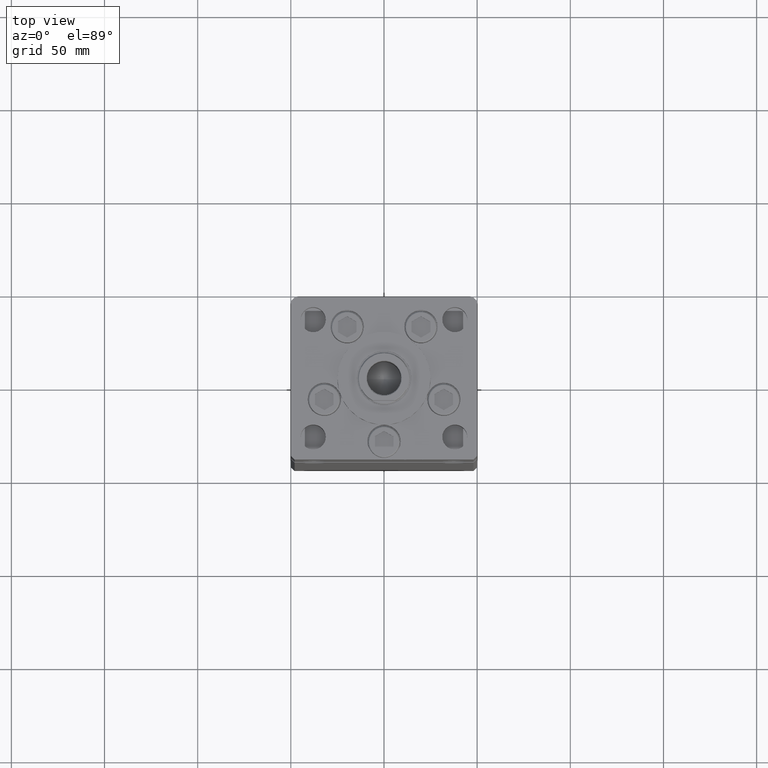
[diagram: clean part render]
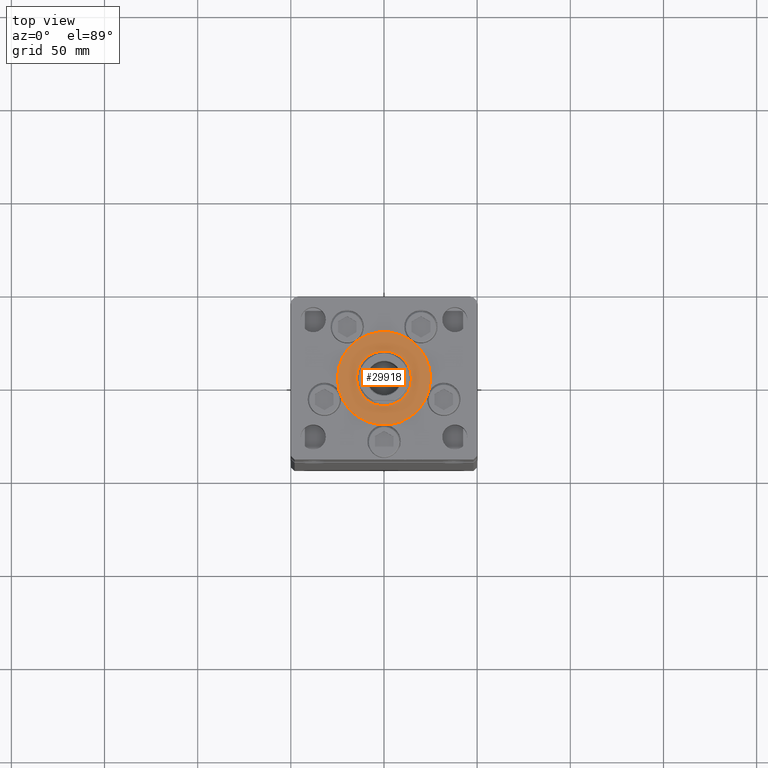
[diagram: same view with one face highlighted and labeled with its STEP entity id]
A machine part, top view. The second image highlights one B-rep face of the part: STEP entity #29918.
In plain terms, the highlighted planar face has unit normal (0, 0, 1).
Its self-contained STEP definition (entity closure, byte-faithful):
#291 = VERTEX_POINT ( 'NONE', #5239 ) ;
#2522 = ORIENTED_EDGE ( 'NONE', *, *, #13127, .T. ) ;
#2698 = DIRECTION ( 'NONE',  ( 0.000000000000000000, 0.000000000000000000, 1.000000000000000000 ) ) ;
#2898 = CARTESIAN_POINT ( 'NONE',  ( 0.000000000000000000, -6.938893903907228378E-15, 2.000000000000000000 ) ) ;
#3922 = DIRECTION ( 'NONE',  ( 0.000000000000000000, 0.000000000000000000, 1.000000000000000000 ) ) ;
#4497 = VERTEX_POINT ( 'NONE', #6522 ) ;
#5239 = CARTESIAN_POINT ( 'NONE',  ( 25.00000000000000000, -3.877276906038844941E-15, 2.000000000000000000 ) ) ;
#5539 = CIRCLE ( 'NONE', #12425, 25.00000000000000000 ) ;
#6522 = CARTESIAN_POINT ( 'NONE',  ( -25.00000000000000000, -6.938893903907228378E-15, 2.000000000000000000 ) ) ;
#6751 = CARTESIAN_POINT ( 'NONE',  ( 0.000000000000000000, -6.938893903907228378E-15, 2.000000000000000000 ) ) ;
#7463 = PLANE ( 'NONE',  #36541 ) ;
#9160 = CIRCLE ( 'NONE', #46107, 14.75000000000000178 ) ;
#10231 = DIRECTION ( 'NONE',  ( 0.000000000000000000, 0.000000000000000000, 1.000000000000000000 ) ) ;
#10527 = DIRECTION ( 'NONE',  ( 1.000000000000000000, 0.000000000000000000, 0.000000000000000000 ) ) ;
#11995 = CARTESIAN_POINT ( 'NONE',  ( 0.000000000000000000, -6.938893903907228378E-15, 2.000000000000000000 ) ) ;
#12037 = FACE_OUTER_BOUND ( 'NONE', #25524, .T. ) ;
#12212 = ORIENTED_EDGE ( 'NONE', *, *, #29510, .F. ) ;
#12425 = AXIS2_PLACEMENT_3D ( 'NONE', #46581, #2698, #38530 ) ;
#13127 = EDGE_CURVE ( 'NONE', #4497, #291, #24110, .T. ) ;
#15824 = FACE_BOUND ( 'NONE', #33833, .T. ) ;
#18845 = CARTESIAN_POINT ( 'NONE',  ( 0.000000000000000000, -6.938893903907228378E-15, 2.000000000000000000 ) ) ;
#19109 = CARTESIAN_POINT ( 'NONE',  ( 14.75000000000000178, -6.938893903907228378E-15, 2.000000000000000000 ) ) ;
#19333 = DIRECTION ( 'NONE',  ( 0.000000000000000000, 0.000000000000000000, 1.000000000000000000 ) ) ;
#20348 = DIRECTION ( 'NONE',  ( 1.000000000000000000, 0.000000000000000000, 0.000000000000000000 ) ) ;
#24110 = CIRCLE ( 'NONE', #25857, 25.00000000000000000 ) ;
#24703 = ORIENTED_EDGE ( 'NONE', *, *, #28642, .T. ) ;
#25524 = EDGE_LOOP ( 'NONE', ( #2522, #24703 ) ) ;
#25857 = AXIS2_PLACEMENT_3D ( 'NONE', #18845, #10231, #50859 ) ;
#26938 = VERTEX_POINT ( 'NONE', #30464 ) ;
#28642 = EDGE_CURVE ( 'NONE', #291, #4497, #5539, .T. ) ;
#29510 = EDGE_CURVE ( 'NONE', #26938, #32966, #33947, .T. ) ;
#29918 = ADVANCED_FACE ( 'NONE', ( #15824, #12037 ), #7463, .T. ) ;
#30464 = CARTESIAN_POINT ( 'NONE',  ( -14.75000000000000178, -5.132539875164881787E-15, 2.000000000000000000 ) ) ;
#32966 = VERTEX_POINT ( 'NONE', #19109 ) ;
#33833 = EDGE_LOOP ( 'NONE', ( #49685, #12212 ) ) ;
#33938 = EDGE_CURVE ( 'NONE', #32966, #26938, #9160, .T. ) ;
#33947 = CIRCLE ( 'NONE', #39965, 14.75000000000000178 ) ;
#36541 = AXIS2_PLACEMENT_3D ( 'NONE', #2898, #19333, #48100 ) ;
#38530 = DIRECTION ( 'NONE',  ( 1.000000000000000000, 0.000000000000000000, 0.000000000000000000 ) ) ;
#39965 = AXIS2_PLACEMENT_3D ( 'NONE', #6751, #47653, #10527 ) ;
#46107 = AXIS2_PLACEMENT_3D ( 'NONE', #11995, #3922, #20348 ) ;
#46581 = CARTESIAN_POINT ( 'NONE',  ( 0.000000000000000000, -6.938893903907228378E-15, 2.000000000000000000 ) ) ;
#47653 = DIRECTION ( 'NONE',  ( 0.000000000000000000, 0.000000000000000000, 1.000000000000000000 ) ) ;
#48100 = DIRECTION ( 'NONE',  ( 1.000000000000000000, 0.000000000000000000, -0.000000000000000000 ) ) ;
#49685 = ORIENTED_EDGE ( 'NONE', *, *, #33938, .F. ) ;
#50859 = DIRECTION ( 'NONE',  ( 1.000000000000000000, 0.000000000000000000, 0.000000000000000000 ) ) ;